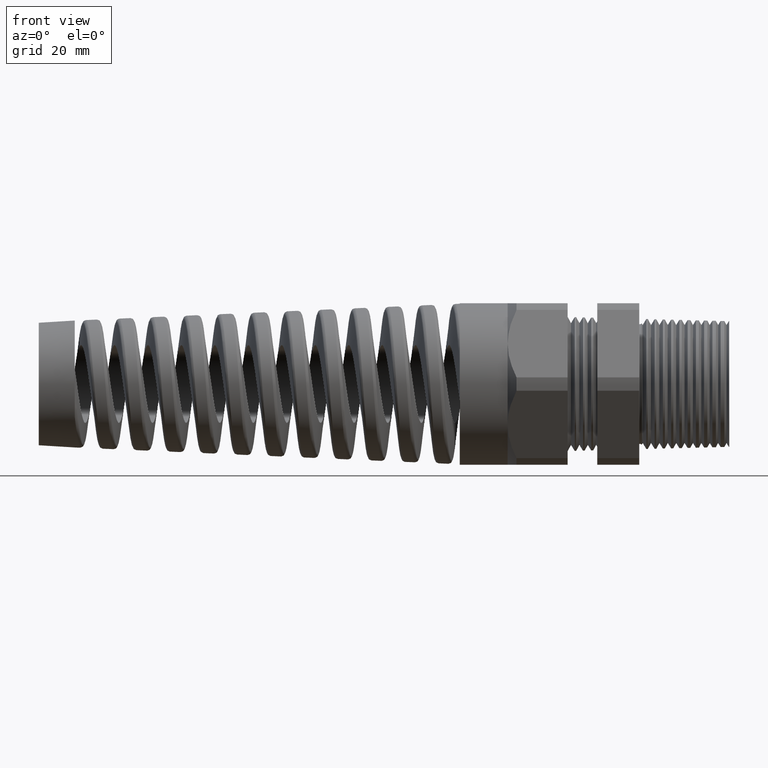
[diagram: clean part render]
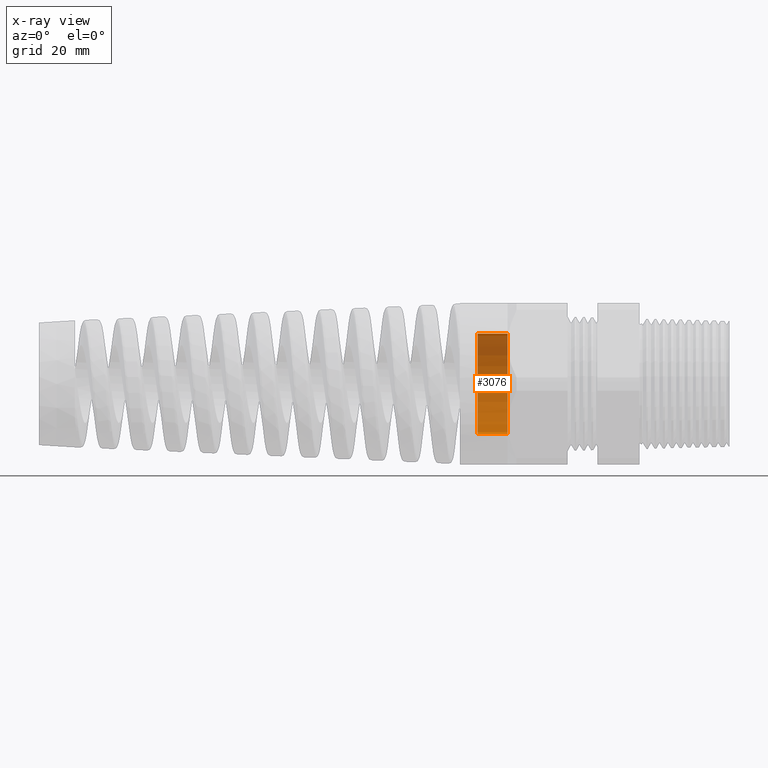
[diagram: x-ray — body ghosted, one internal face saturated and labeled with its STEP entity id]
A machine part, front view, then the same camera in x-ray: the body is ghosted and one INTERNAL B-rep face — a face not visible from any outside direction — is saturated and labeled: STEP entity #3076.
In plain terms, the highlighted cylindrical surface (partial cylindrical patch) has radius 8.382 mm, axis along (1, 0, 0).
Its self-contained STEP definition (entity closure, byte-faithful):
#3070 = VERTEX_POINT ( 'NONE', #14572 ) ;
#3072 = EDGE_CURVE ( 'NONE', #3073, #3070, #14571, .T. ) ;
#3073 = VERTEX_POINT ( 'NONE', #14551 ) ;
#3076 = ADVANCED_FACE ( 'NONE', ( #14550 ), #14544, .T. ) ;
#3077 = EDGE_LOOP ( 'NONE', ( #3078, #3079, #3082, #3085 ) ) ;
#3078 = ORIENTED_EDGE ( 'NONE', *, *, #3072, .T. ) ;
#3079 = ORIENTED_EDGE ( 'NONE', *, *, #3080, .T. ) ;
#3080 = EDGE_CURVE ( 'NONE', #3070, #3081, #14656, .T. ) ;
#3081 = VERTEX_POINT ( 'NONE', #14652 ) ;
#3082 = ORIENTED_EDGE ( 'NONE', *, *, #3083, .F. ) ;
#3083 = EDGE_CURVE ( 'NONE', #3084, #3081, #14651, .T. ) ;
#3084 = VERTEX_POINT ( 'NONE', #14646 ) ;
#3085 = ORIENTED_EDGE ( 'NONE', *, *, #3086, .F. ) ;
#3086 = EDGE_CURVE ( 'NONE', #3073, #3084, #14644, .T. ) ;
#14544 = CYLINDRICAL_SURFACE ( 'NONE', #14660, 0.3300000000000000200 ) ;
#14550 = FACE_OUTER_BOUND ( 'NONE', #3077, .T. ) ;
#14551 = CARTESIAN_POINT ( 'NONE',  ( -1.371000000000000000, 0.0000000000000000000, -0.3300000000000000200 ) ) ;
#14552 = DIRECTION ( 'NONE',  ( 0.0000000000000000000, 0.0000000000000000000, -1.000000000000000000 ) ) ;
#14553 = DIRECTION ( 'NONE',  ( 1.000000000000000000, 0.0000000000000000000, 0.0000000000000000000 ) ) ;
#14569 = CARTESIAN_POINT ( 'NONE',  ( -1.371000000000000000, 0.0000000000000000000, 0.0000000000000000000 ) ) ;
#14570 = AXIS2_PLACEMENT_3D ( 'NONE', #14569, #14553, #14552 ) ;
#14571 = CIRCLE ( 'NONE', #14570, 0.3300000000000000200 ) ;
#14572 = CARTESIAN_POINT ( 'NONE',  ( -1.371000000000000000, 4.041334437186265900E-017, 0.3300000000000000200 ) ) ;
#14641 = DIRECTION ( 'NONE',  ( 1.000000000000000000, 0.0000000000000000000, 0.0000000000000000000 ) ) ;
#14642 = VECTOR ( 'NONE', #14641, 39.37007874015748100 ) ;
#14643 = CARTESIAN_POINT ( 'NONE',  ( 0.0000000000000000000, 0.0000000000000000000, -0.3300000000000000200 ) ) ;
#14644 = LINE ( 'NONE', #14643, #14642 ) ;
#14646 = CARTESIAN_POINT ( 'NONE',  ( -1.173779527559055200, 0.0000000000000000000, -0.3300000000000000200 ) ) ;
#14647 = DIRECTION ( 'NONE',  ( 0.0000000000000000000, 0.0000000000000000000, -1.000000000000000000 ) ) ;
#14648 = DIRECTION ( 'NONE',  ( 1.000000000000000000, 0.0000000000000000000, 0.0000000000000000000 ) ) ;
#14649 = CARTESIAN_POINT ( 'NONE',  ( -1.173779527559055200, 0.0000000000000000000, 0.0000000000000000000 ) ) ;
#14650 = AXIS2_PLACEMENT_3D ( 'NONE', #14649, #14648, #14647 ) ;
#14651 = CIRCLE ( 'NONE', #14650, 0.3300000000000000200 ) ;
#14652 = CARTESIAN_POINT ( 'NONE',  ( -1.173779527559055200, 4.041334437186265900E-017, 0.3300000000000000200 ) ) ;
#14653 = DIRECTION ( 'NONE',  ( 1.000000000000000000, 0.0000000000000000000, 0.0000000000000000000 ) ) ;
#14654 = VECTOR ( 'NONE', #14653, 39.37007874015748100 ) ;
#14655 = CARTESIAN_POINT ( 'NONE',  ( 0.0000000000000000000, 4.041334437186265900E-017, 0.3300000000000000200 ) ) ;
#14656 = LINE ( 'NONE', #14655, #14654 ) ;
#14657 = DIRECTION ( 'NONE',  ( 0.0000000000000000000, 0.0000000000000000000, -1.000000000000000000 ) ) ;
#14658 = DIRECTION ( 'NONE',  ( 1.000000000000000000, 0.0000000000000000000, 0.0000000000000000000 ) ) ;
#14659 = CARTESIAN_POINT ( 'NONE',  ( 0.0000000000000000000, 0.0000000000000000000, 0.0000000000000000000 ) ) ;
#14660 = AXIS2_PLACEMENT_3D ( 'NONE', #14659, #14658, #14657 ) ;